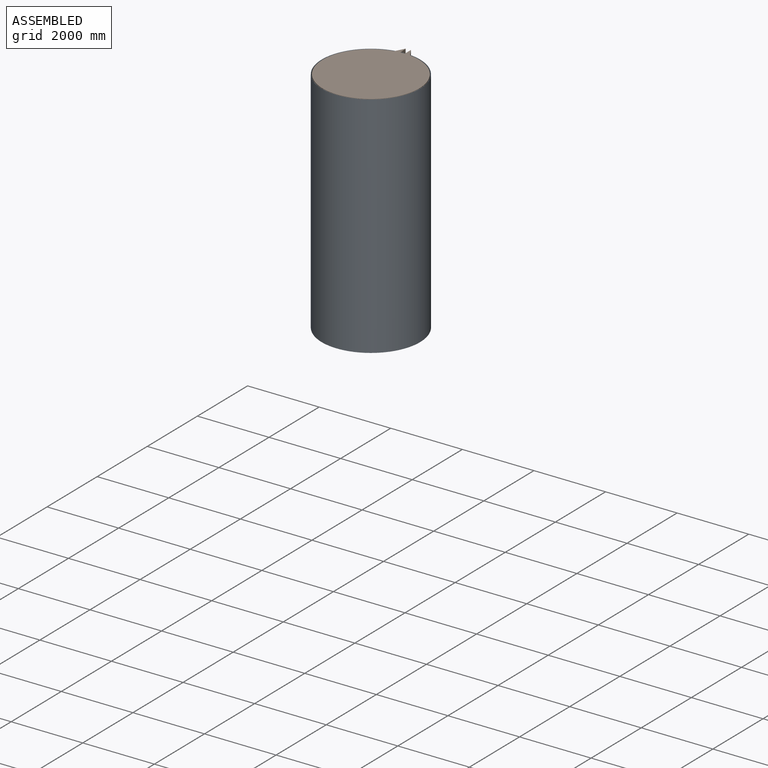
[diagram: assembled view]
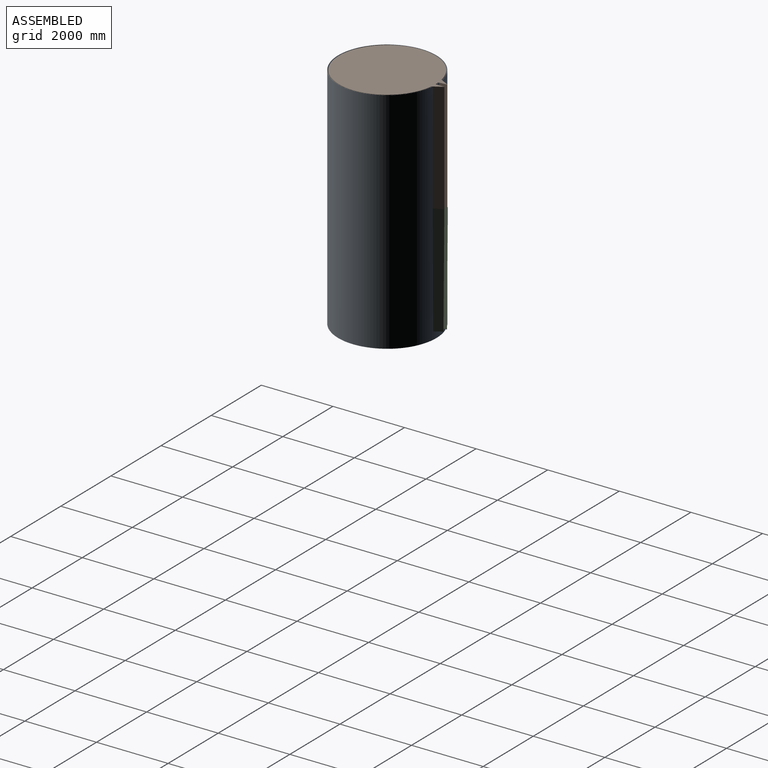
[diagram: assembled view, second angle]
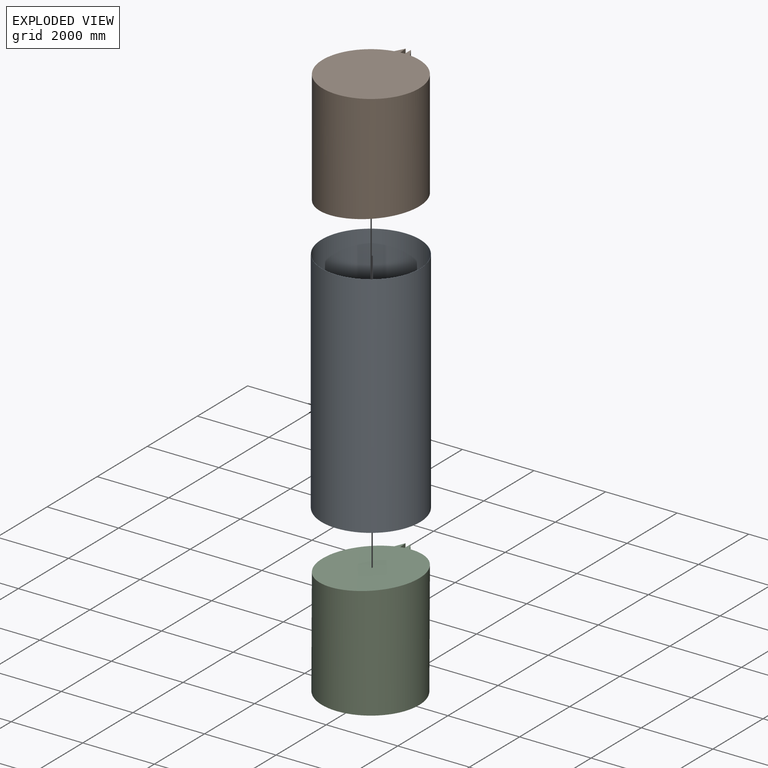
[diagram: exploded view]
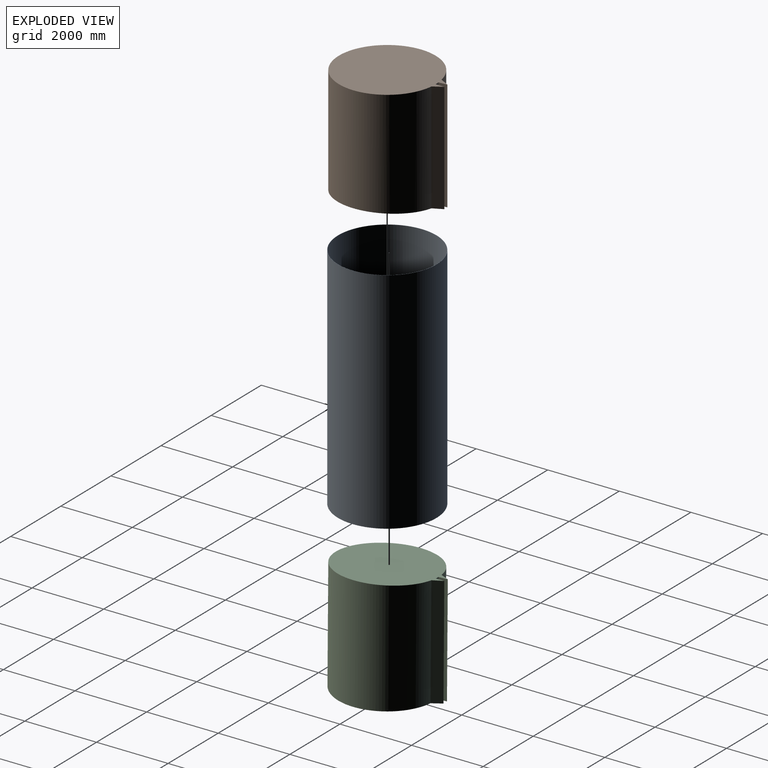
[diagram: exploded view, second angle]
ASSEMBLY  parts=3 mates=4
PART A: 4 faces, bbox 2750x2750x6400 mm
  f0: cylinder r=1370mm len=6400mm, axis (0,0,-1), area 55090968.8mm2, adj f2,f3
  f1: cylinder r=1375mm len=6400mm, axis (0,0,-1), area 55292030.7mm2, adj f2,f3
  f2: plane 2750x2750mm, normal (0,0,1), area 43118.4mm2, adj f0,f1
  f3: plane 2750x2750mm, normal (0,0,-1), area 43118.4mm2, adj f0,f1
PART B: 8 faces, bbox 2700x2946.1x3201.4 mm
  f0: plane 3089.19x246.06mm, normal (-1,0,0), area 760131mm2, adj f1,f5,f6,f7
  f1: cylinder r=1350mm len=3098.85mm, axis (0,0,-1), area 364505.7mm2, adj f0,f2,f6,f7
  f2: plane 3100.56x238.16mm, normal (1,0.09,0), area 741056mm2, adj f1,f3,f6,f7
  f3: plane 3111.98x261.88mm, normal (-0.88,0.47,0), area 921109.9mm2, adj f2,f4,f6,f7
  f4: cylinder r=1350mm len=3201.36mm, axis (0,0,-1), area 24859210.8mm2, adj f3,f5,f6,f7
  f5: plane 3089.19x254.93mm, normal (0.86,0.52,0), area 918948.6mm2, adj f0,f4,f6,f7
  f6: plane 2946.06x2700mm, normal (0,0,1), area 5763362.4mm2, adj f0,f1,f2,f3,f4,f5
  f7: plane 2946.07x2700.01mm, normal (0.08,0,-1), area 5782744.1mm2, adj f0,f1,f2,f3,f4,f5
PART C: same geometry as B
PLACE A t=(-65.31,-123.03,-1549.1)mm
PLACE B t=(-65.31,-123.03,1650.9)mm fixed
PLACE C rot(axis=(-0.05,1,0),180deg) t=(-65.35,-122.2,1872.51)mm
MATE cylindrical A.f1 <-> B.f4  axis (0,0,1) through (-65.31,-123.03,4850.9)mm
MATE planar A.f1 <-> B.f6  axis (0,0,1) through (-65.31,-123.03,4850.9)mm
MATE cylindrical B.f7 <-> C.f7  axis (0.08,0,-1) through (-65.31,-123.03,1761.71)mm
MATE planar B.f7 <-> C.f7  axis (0.08,0,-1) through (-65.73,-113.69,1761.68)mm
